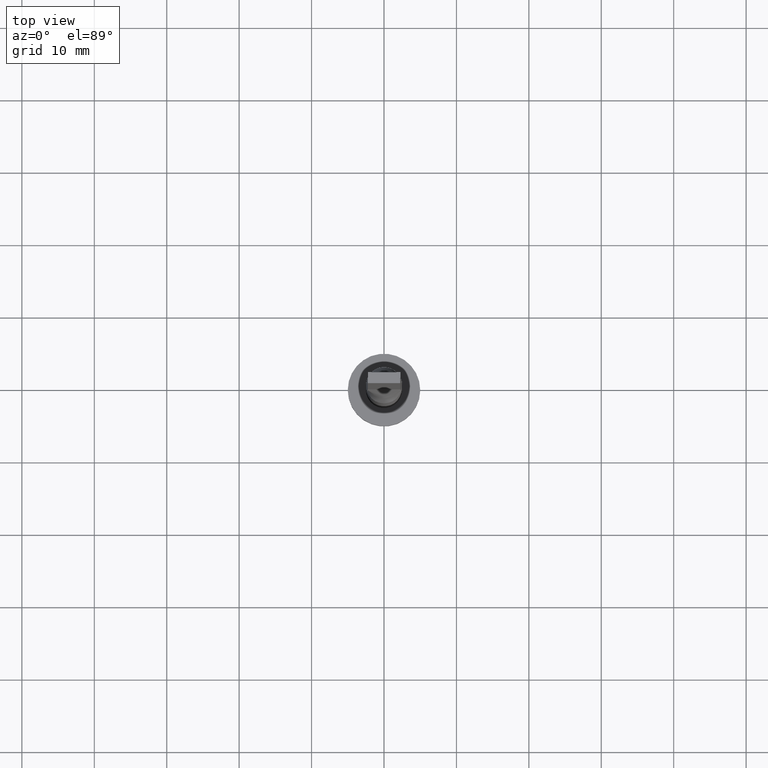
[diagram: clean part render]
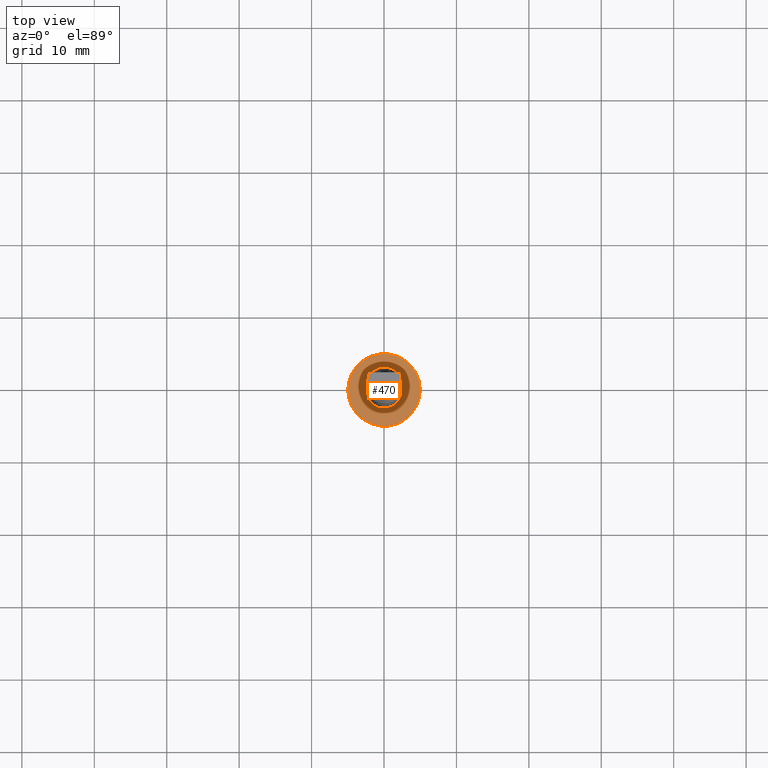
[diagram: same view with one face highlighted and labeled with its STEP entity id]
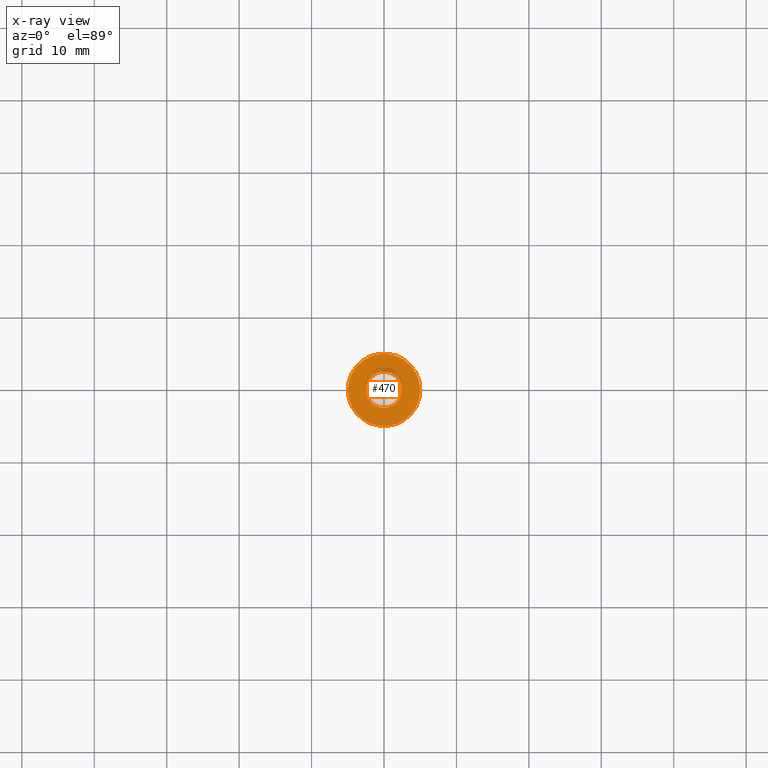
[diagram: x-ray of the same camera — body ghosted, the highlighted face saturated]
A machine part, top view. The second image highlights one B-rep face of the part: STEP entity #470.
The next image is the same camera in x-ray: the body ghosted, the highlighted face saturated — about 6% of this face is hidden behind the body in this view.
In plain terms, the highlighted planar face has unit normal (0, 0, 1).
Its self-contained STEP definition (entity closure, byte-faithful):
#5 = FACE_BOUND ( 'NONE', #131, .T. ) ;
#39 = EDGE_CURVE ( 'NONE', #155, #212, #474, .T. ) ;
#49 = DIRECTION ( 'NONE',  ( 1.000000000000000000, 0.000000000000000000, 0.000000000000000000 ) ) ;
#55 = VERTEX_POINT ( 'NONE', #84 ) ;
#65 = AXIS2_PLACEMENT_3D ( 'NONE', #144, #331, #499 ) ;
#84 = CARTESIAN_POINT ( 'NONE',  ( 5.000000000000000000, 6.123233995736766282E-16, 3.000000000000000000 ) ) ;
#87 = EDGE_LOOP ( 'NONE', ( #262, #417 ) ) ;
#95 = CIRCLE ( 'NONE', #423, 5.000000000000000000 ) ;
#112 = FACE_OUTER_BOUND ( 'NONE', #87, .T. ) ;
#120 = EDGE_CURVE ( 'NONE', #55, #285, #354, .T. ) ;
#131 = EDGE_LOOP ( 'NONE', ( #316, #328 ) ) ;
#136 = DIRECTION ( 'NONE',  ( 1.000000000000000000, 0.000000000000000000, 0.000000000000000000 ) ) ;
#144 = CARTESIAN_POINT ( 'NONE',  ( 0.000000000000000000, 0.000000000000000000, 3.000000000000000000 ) ) ;
#147 = DIRECTION ( 'NONE',  ( 1.000000000000000000, 0.000000000000000000, 0.000000000000000000 ) ) ;
#149 = CIRCLE ( 'NONE', #477, 2.500000000000000000 ) ;
#155 = VERTEX_POINT ( 'NONE', #579 ) ;
#198 = CARTESIAN_POINT ( 'NONE',  ( 0.000000000000000000, 0.000000000000000000, 3.000000000000000000 ) ) ;
#210 = AXIS2_PLACEMENT_3D ( 'NONE', #217, #219, #399 ) ;
#212 = VERTEX_POINT ( 'NONE', #230 ) ;
#217 = CARTESIAN_POINT ( 'NONE',  ( 0.000000000000000000, 0.000000000000000000, 3.000000000000000000 ) ) ;
#219 = DIRECTION ( 'NONE',  ( 0.000000000000000000, 0.000000000000000000, 1.000000000000000000 ) ) ;
#230 = CARTESIAN_POINT ( 'NONE',  ( -2.500000000000000000, 0.000000000000000000, 3.000000000000000000 ) ) ;
#262 = ORIENTED_EDGE ( 'NONE', *, *, #409, .T. ) ;
#265 = CARTESIAN_POINT ( 'NONE',  ( 0.000000000000000000, 0.000000000000000000, 3.000000000000000000 ) ) ;
#280 = CARTESIAN_POINT ( 'NONE',  ( 0.000000000000000000, 0.000000000000000000, 3.000000000000000000 ) ) ;
#282 = AXIS2_PLACEMENT_3D ( 'NONE', #265, #371, #136 ) ;
#285 = VERTEX_POINT ( 'NONE', #496 ) ;
#294 = EDGE_CURVE ( 'NONE', #212, #155, #149, .T. ) ;
#316 = ORIENTED_EDGE ( 'NONE', *, *, #294, .F. ) ;
#328 = ORIENTED_EDGE ( 'NONE', *, *, #39, .F. ) ;
#331 = DIRECTION ( 'NONE',  ( 0.000000000000000000, 0.000000000000000000, 1.000000000000000000 ) ) ;
#354 = CIRCLE ( 'NONE', #282, 5.000000000000000000 ) ;
#371 = DIRECTION ( 'NONE',  ( 0.000000000000000000, 0.000000000000000000, 1.000000000000000000 ) ) ;
#399 = DIRECTION ( 'NONE',  ( 1.000000000000000000, 0.000000000000000000, 0.000000000000000000 ) ) ;
#409 = EDGE_CURVE ( 'NONE', #285, #55, #95, .T. ) ;
#417 = ORIENTED_EDGE ( 'NONE', *, *, #120, .T. ) ;
#423 = AXIS2_PLACEMENT_3D ( 'NONE', #198, #549, #147 ) ;
#452 = DIRECTION ( 'NONE',  ( 0.000000000000000000, 0.000000000000000000, 1.000000000000000000 ) ) ;
#470 = ADVANCED_FACE ( 'NONE', ( #5, #112 ), #540, .T. ) ;
#474 = CIRCLE ( 'NONE', #210, 2.500000000000000000 ) ;
#477 = AXIS2_PLACEMENT_3D ( 'NONE', #280, #452, #49 ) ;
#496 = CARTESIAN_POINT ( 'NONE',  ( -5.000000000000000000, 0.000000000000000000, 3.000000000000000000 ) ) ;
#499 = DIRECTION ( 'NONE',  ( 1.000000000000000000, 0.000000000000000000, -0.000000000000000000 ) ) ;
#540 = PLANE ( 'NONE',  #65 ) ;
#549 = DIRECTION ( 'NONE',  ( 0.000000000000000000, 0.000000000000000000, 1.000000000000000000 ) ) ;
#579 = CARTESIAN_POINT ( 'NONE',  ( 2.500000000000000000, 3.061616997868383141E-16, 3.000000000000000000 ) ) ;